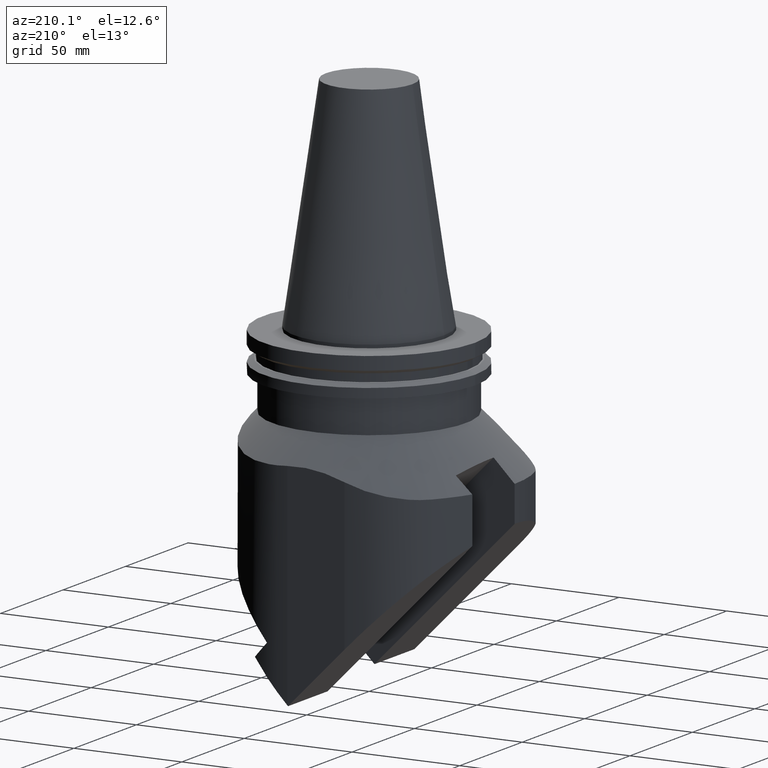
[diagram: clean part render]
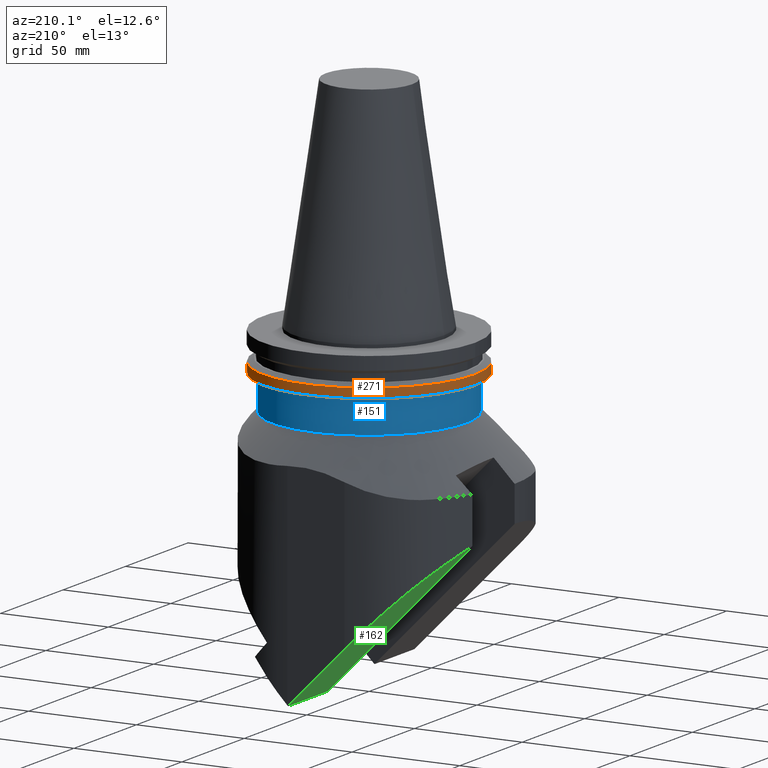
[diagram: same view with three faces highlighted in distinct colors, each labeled with its STEP entity id]
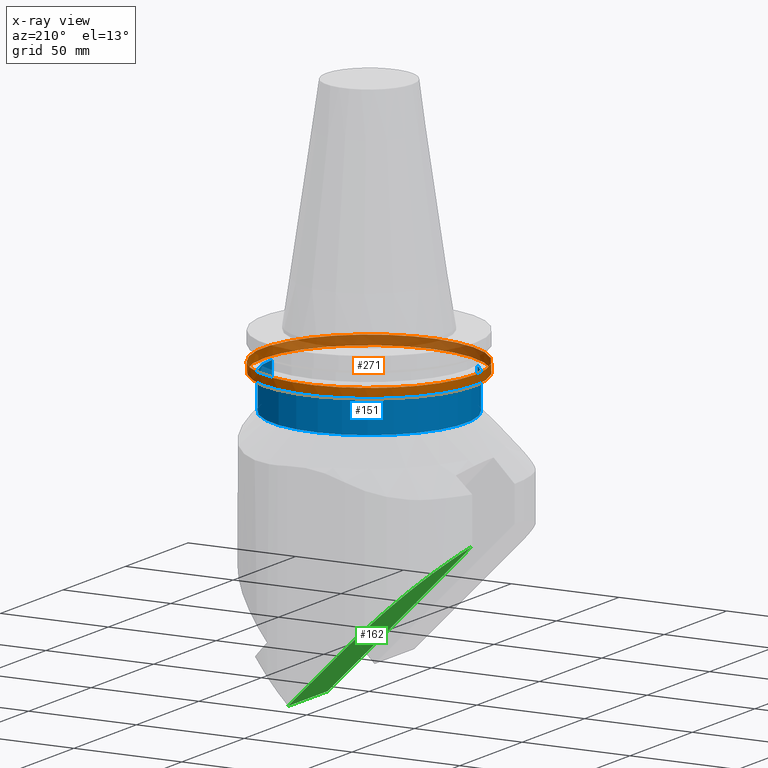
[diagram: x-ray of the same camera — body ghosted, the three highlighted faces saturated]
A machine part, auxiliary view with three faces highlighted in distinct colors.
The next image is the same camera in x-ray (body ghosted, the three faces saturated) — at least one of them is partly hidden behind the body in this view.
Their STEP definitions:

[orange] entity #271 — the highlighted cylindrical surface (bore or boss wall) has radius 49.2125 mm, axis along (0, -0, -1).
#206=EDGE_CURVE('Unnamed[1]',#504,#504,#505,.T.);
#271=ADVANCED_FACE('Unnamed[1]',(#591,#592),#593,.T.);
#314=EDGE_CURVE('Unnamed[1]',#644,#644,#645,.T.);
#504=VERTEX_POINT('',#890);
#505=CIRCLE('',#891,49.2125);
#591=FACE_BOUND('',#1083,.T.);
#592=FACE_BOUND('',#1084,.T.);
#593=CYLINDRICAL_SURFACE('',#1085,49.2125);
#644=VERTEX_POINT('',#1176);
#645=CIRCLE('',#1177,49.2125);
#890=CARTESIAN_POINT('',(-49.2125,5.7880872763451E-015,-14.64616677));
#891=AXIS2_PLACEMENT_3D('',#1417,#1418,#1419);
#1083=EDGE_LOOP('',(#1505));
#1084=EDGE_LOOP('',(#1506));
#1085=AXIS2_PLACEMENT_3D('',#1507,#1508,#1509);
#1176=CARTESIAN_POINT('',(44.8709415911356,20.2106100099649,-19.05));
#1177=AXIS2_PLACEMENT_3D('',#1565,#1566,#1567);
#1417=CARTESIAN_POINT('',(1.79363812546588E-015,-3.25210231411077E-015,-14.64616677));
#1418=DIRECTION('',(1.22464679914735E-016,-2.22044604925031E-016,-1.0));
#1419=DIRECTION('',(-1.0,1.83697019872103E-016,-1.22464679914735E-016));
#1505=ORIENTED_EDGE('',*,*,#314,.F.);
#1506=ORIENTED_EDGE('',*,*,#206,.T.);
#1507=CARTESIAN_POINT('',(2.06329513892079E-015,-3.74102601896631E-015,-16.848083385));
#1508=DIRECTION('',(1.22464679914735E-016,-2.22044604925031E-016,-1.0));
#1509=DIRECTION('',(-1.0,1.83697019872103E-016,-1.22464679914735E-016));
#1565=CARTESIAN_POINT('',(2.33295215237571E-015,-4.22994972382185E-015,-19.05));
#1566=DIRECTION('',(1.22464679914735E-016,-2.22044604925031E-016,-1.0));
#1567=DIRECTION('',(-1.0,1.83697019872103E-016,-1.22464679914735E-016));

[blue] entity #151 — the highlighted cylindrical surface (partial cylindrical patch) has radius 45 mm, axis along (0, -0, -1).
#151=ADVANCED_FACE('Unnamed[1]',(#417),#418,.T.);
#208=EDGE_CURVE('Unnamed[1]',#507,#508,#509,.T.);
#246=EDGE_CURVE('Unnamed[1]',#427,#508,#561,.T.);
#250=EDGE_CURVE('Unnamed[1]',#565,#507,#566,.T.);
#327=EDGE_CURVE('Unnamed[1]',#565,#427,#662,.T.);
#417=FACE_OUTER_BOUND('',#773,.T.);
#418=CYLINDRICAL_SURFACE('',#774,44.9999999999998);
#427=VERTEX_POINT('',#787);
#507=VERTEX_POINT('',#894);
#508=VERTEX_POINT('',#895);
#509=CIRCLE('',#896,44.9999999999997);
#561=LINE('',#1039,#1040);
#565=VERTEX_POINT('',#1047);
#566=LINE('',#1048,#1049);
#662=CIRCLE('',#1199,44.9999999999998);
#773=EDGE_LOOP('',(#1308,#1309,#1310,#1311));
#774=AXIS2_PLACEMENT_3D('',#1312,#1313,#1314);
#787=CARTESIAN_POINT('',(45.0000000000004,-4.0956928841068E-013,-35.0000000000011));
#894=CARTESIAN_POINT('',(-31.6385840391121,-32.0000000000002,-19.0500000000001));
#895=CARTESIAN_POINT('',(45.0,-1.28142588218318E-013,-19.05));
#896=AXIS2_PLACEMENT_3D('',#1420,#1421,#1422);
#1039=CARTESIAN_POINT('',(45.0000000000007,-4.69789976989156E-013,-306.209870642012));
#1040=VECTOR('',#1473,1.0);
#1047=CARTESIAN_POINT('',(-31.6385840391123,-32.0000000000002,-35.0000000000011));
#1048=CARTESIAN_POINT('',(-31.6385840391122,-32.0000000000002,-27.0250000000006));
#1049=VECTOR('',#1475,1.0);
#1199=AXIS2_PLACEMENT_3D('',#1596,#1597,#1598);
#1308=ORIENTED_EDGE('',*,*,#246,.F.);
#1309=ORIENTED_EDGE('',*,*,#327,.F.);
#1310=ORIENTED_EDGE('',*,*,#250,.T.);
#1311=ORIENTED_EDGE('',*,*,#208,.T.);
#1312=CARTESIAN_POINT('',(3.3096079746958E-015,-6.00075544809911E-015,-27.0250000000006));
#1313=DIRECTION('',(1.22464679914735E-016,-2.22044604925031E-016,-1.0));
#1314=DIRECTION('',(-1.0,1.83697019872103E-016,-1.22464679914735E-016));
#1420=CARTESIAN_POINT('',(2.33295215237572E-015,-4.22994972382187E-015,-19.0500000000001));
#1421=DIRECTION('',(1.22464679914735E-016,-2.22044604925031E-016,-1.0));
#1422=DIRECTION('',(-1.0,1.83697019872103E-016,-1.22464679914735E-016));
#1473=DIRECTION('',(-1.22464679914735E-016,2.22044604925031E-016,1.0));
#1475=DIRECTION('',(-1.22464679914735E-016,2.22044604925031E-016,1.0));
#1596=CARTESIAN_POINT('',(4.28626379701587E-015,-7.77156117237635E-015,-35.0000000000012));
#1597=DIRECTION('',(1.22464679914735E-016,-2.22044604925031E-016,-1.0));
#1598=DIRECTION('',(-1.0,1.83697019872103E-016,-1.22464679914735E-016));

[green] entity #162 — the highlighted planar face has unit normal (0.7071, 0, 0.7071).
#162=ADVANCED_FACE('Unnamed[1]',(#435),#436,.F.);
#222=EDGE_CURVE('Unnamed[1]',#528,#386,#529,.T.);
#244=EDGE_CURVE('Unnamed[1]',#474,#449,#559,.T.);
#284=EDGE_CURVE('Unnamed[1]',#493,#528,#609,.T.);
#353=EDGE_CURVE('Unnamed[1]',#449,#386,#693,.T.);
#355=EDGE_CURVE('Unnamed[1]',#493,#474,#695,.T.);
#386=VERTEX_POINT('',#720);
#435=FACE_OUTER_BOUND('',#798,.T.);
#436=PLANE('',#799);
#449=VERTEX_POINT('',#816);
#474=VERTEX_POINT('',#848);
#493=VERTEX_POINT('',#875);
#528=VERTEX_POINT('',#966);
#529=LINE('',#967,#968);
#559=ELLIPSE('',#1036,56.5685424949238,40.0);
#609=LINE('',#1111,#1112);
#693=ELLIPSE('',#1265,95.4594154601839,67.5);
#695=LINE('',#1268,#1269);
#720=CARTESIAN_POINT('',(-62.5387080135175,25.4,-78.8612919864823));
#798=EDGE_LOOP('',(#1324,#1325,#1326,#1327,#1328));
#799=AXIS2_PLACEMENT_3D('',#1329,#1330,#1331);
#816=CARTESIAN_POINT('',(-53.0573718793563,41.7272727272723,-88.3426281206434));
#848=CARTESIAN_POINT('',(-21.6159663212192,56.9999999999998,-119.784033678781));
#875=CARTESIAN_POINT('',(4.60000000000134,56.9999999999997,-146.000000000001));
#966=CARTESIAN_POINT('',(4.60000000000136,25.3999999999997,-146.000000000001));
#967=CARTESIAN_POINT('',(-18.9635131599367,25.3999999999998,-122.436486840063));
#968=VECTOR('',#1442,1.0);
#1036=AXIS2_PLACEMENT_3D('',#1470,#1471,#1472);
#1111=CARTESIAN_POINT('',(4.60000000000134,-3.32635186104667E-014,-146.000000000001));
#1112=VECTOR('',#1524,1.0);
#1265=AXIS2_PLACEMENT_3D('',#1639,#1640,#1641);
#1268=CARTESIAN_POINT('',(23.4004718703509,56.9999999999997,-164.800471870351));
#1269=VECTOR('',#1642,1.0);
#1324=ORIENTED_EDGE('',*,*,#222,.T.);
#1325=ORIENTED_EDGE('',*,*,#353,.F.);
#1326=ORIENTED_EDGE('',*,*,#244,.F.);
#1327=ORIENTED_EDGE('',*,*,#355,.F.);
#1328=ORIENTED_EDGE('',*,*,#284,.T.);
#1329=CARTESIAN_POINT('',(-31.4499999999993,-1.86365330365298E-014,-109.95));
#1330=DIRECTION('',(0.707106781186547,2.71158374330535E-017,0.707106781186548));
#1331=DIRECTION('',(0.707106781186548,-2.86902654303702E-016,-0.707106781186547));
#1442=DIRECTION('',(-0.707106781186548,3.02444589770757E-015,0.707106781186547));
#1470=CARTESIAN_POINT('',(-21.6159663212192,16.9999999999998,-119.784033678781));
#1471=DIRECTION('',(0.707106781186547,2.71158374330535E-017,0.707106781186548));
#1472=DIRECTION('',(-0.707106781186548,3.73498259927251E-016,0.707106781186547));
#1524=DIRECTION('',(-1.83697019872103E-016,-1.0,2.22044604925031E-016));
#1639=CARTESIAN_POINT('',(1.73165057399435E-014,-3.13971071363994E-014,-141.4));
#1640=DIRECTION('',(0.707106781186547,2.71158374330535E-017,0.707106781186548));
#1641=DIRECTION('',(-0.707106781186548,2.86902654303702E-016,0.707106781186547));
#1642=DIRECTION('',(-0.707106781186548,2.86902654303702E-016,0.707106781186547));